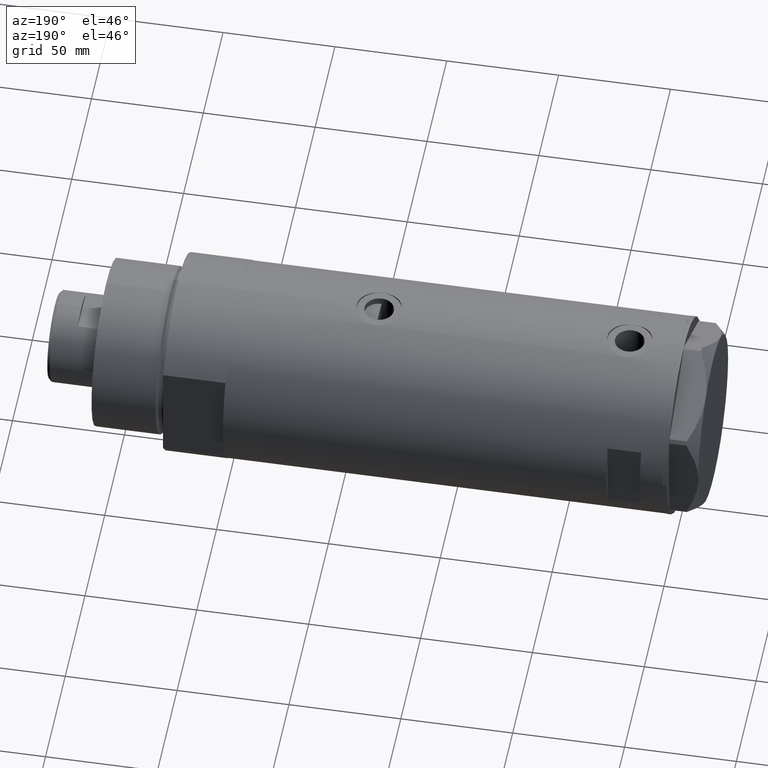
[diagram: clean part render]
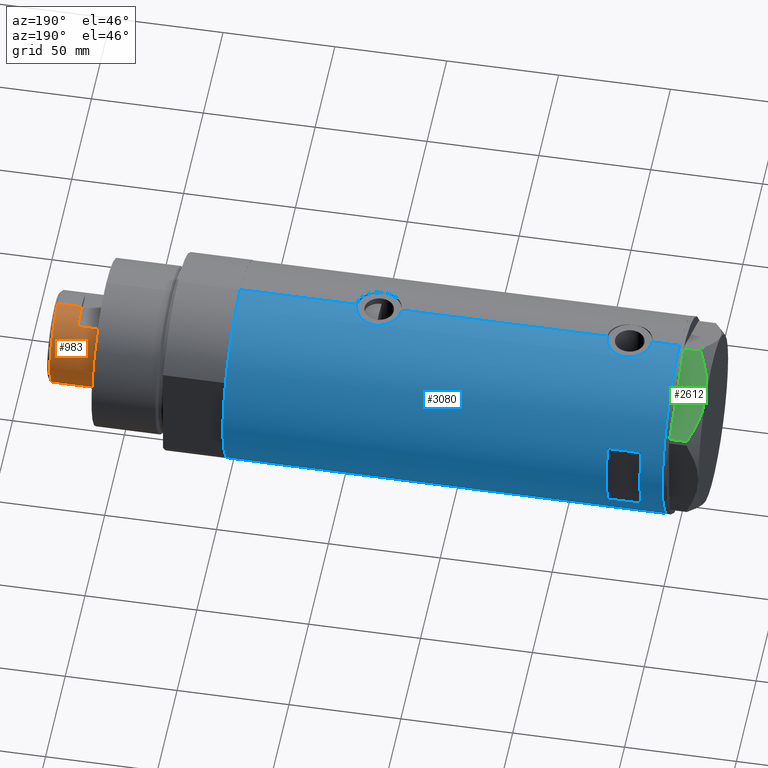
[diagram: same view with three faces highlighted in distinct colors, each labeled with its STEP entity id]
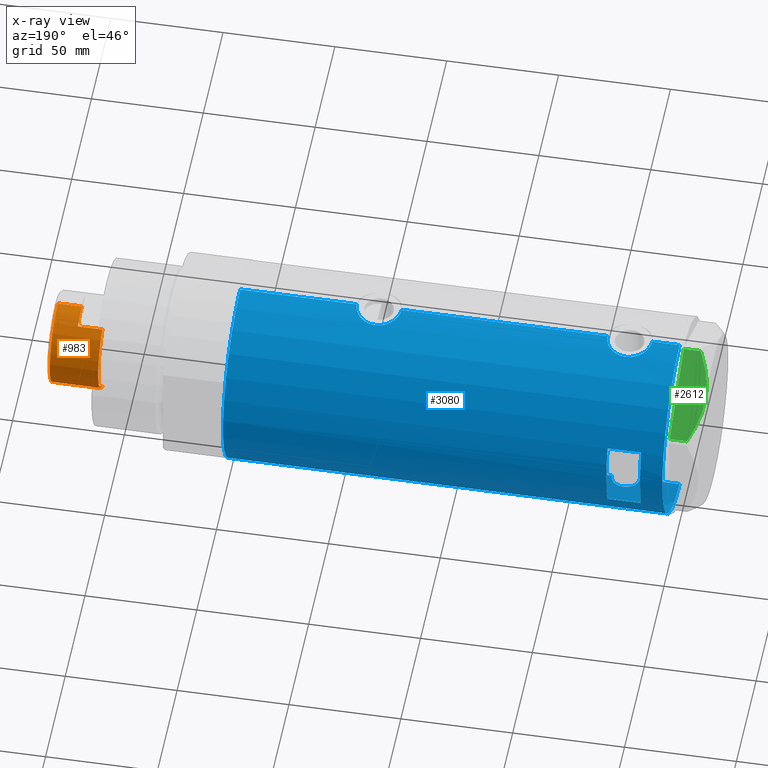
[diagram: x-ray of the same camera — body ghosted, the three highlighted faces saturated]
A machine part, auxiliary view with three faces highlighted in distinct colors.
The next image is the same camera in x-ray (body ghosted, the three faces saturated) — at least one of them is partly hidden behind the body in this view.
Their STEP definitions:

[orange] entity #983 — the highlighted cylindrical surface (partial cylindrical patch) has radius 20.5 mm, axis along (-1, -0, 0).
#8 = LINE ( 'NONE', #2522, #1669 ) ;
#36 = CIRCLE ( 'NONE', #555, 20.50000000000000355 ) ;
#46 = LINE ( 'NONE', #2860, #1071 ) ;
#96 = ORIENTED_EDGE ( 'NONE', *, *, #2077, .T. ) ;
#132 = ORIENTED_EDGE ( 'NONE', *, *, #4010, .F. ) ;
#145 = VERTEX_POINT ( 'NONE', #3729 ) ;
#335 = DIRECTION ( 'NONE',  ( -1.000000000000000000, 0.000000000000000000, 0.000000000000000000 ) ) ;
#540 = CARTESIAN_POINT ( 'NONE',  ( 17.97852886083842705, 9.849999999999997868, 230.3000000000000114 ) ) ;
#555 = AXIS2_PLACEMENT_3D ( 'NONE', #1433, #2538, #2127 ) ;
#626 = VERTEX_POINT ( 'NONE', #3597 ) ;
#908 = EDGE_CURVE ( 'NONE', #145, #3877, #2948, .T. ) ;
#983 = ADVANCED_FACE ( 'NONE', ( #1128 ), #4513, .T. ) ;
#1041 = DIRECTION ( 'NONE',  ( 0.000000000000000000, 0.000000000000000000, 1.000000000000000000 ) ) ;
#1071 = VECTOR ( 'NONE', #3649, 1000.000000000000000 ) ;
#1081 = CARTESIAN_POINT ( 'NONE',  ( 0.000000000000000000, 0.000000000000000000, 230.3000000000000114 ) ) ;
#1128 = FACE_OUTER_BOUND ( 'NONE', #1849, .T. ) ;
#1211 = AXIS2_PLACEMENT_3D ( 'NONE', #1081, #1502, #1797 ) ;
#1223 = AXIS2_PLACEMENT_3D ( 'NONE', #3716, #1982, #4475 ) ;
#1296 = CARTESIAN_POINT ( 'NONE',  ( -20.50000000000000355, 0.000000000000000000, 251.9000000000001194 ) ) ;
#1325 = EDGE_CURVE ( 'NONE', #4106, #3703, #3181, .T. ) ;
#1433 = CARTESIAN_POINT ( 'NONE',  ( 0.000000000000000000, 0.000000000000000000, 251.9000000000001194 ) ) ;
#1496 = CARTESIAN_POINT ( 'NONE',  ( 20.50000000000000000, 2.510525938252074481E-15, 241.3000000000000114 ) ) ;
#1502 = DIRECTION ( 'NONE',  ( 0.000000000000000000, 0.000000000000000000, 1.000000000000000000 ) ) ;
#1669 = VECTOR ( 'NONE', #2163, 1000.000000000000000 ) ;
#1797 = DIRECTION ( 'NONE',  ( 1.000000000000000000, 0.000000000000000000, 0.000000000000000000 ) ) ;
#1813 = DIRECTION ( 'NONE',  ( -0.000000000000000000, -0.000000000000000000, -1.000000000000000000 ) ) ;
#1822 = VECTOR ( 'NONE', #1813, 1000.000000000000000 ) ;
#1840 = ORIENTED_EDGE ( 'NONE', *, *, #2303, .T. ) ;
#1849 = EDGE_LOOP ( 'NONE', ( #2883, #2658, #1840, #3796, #2614, #132, #96, #3162 ) ) ;
#1854 = EDGE_CURVE ( 'NONE', #3073, #145, #36, .T. ) ;
#1982 = DIRECTION ( 'NONE',  ( 0.000000000000000000, 0.000000000000000000, 1.000000000000000000 ) ) ;
#2077 = EDGE_CURVE ( 'NONE', #3319, #3763, #2684, .T. ) ;
#2127 = DIRECTION ( 'NONE',  ( 1.000000000000000000, 0.000000000000000000, 0.000000000000000000 ) ) ;
#2163 = DIRECTION ( 'NONE',  ( -0.000000000000000000, -0.000000000000000000, -1.000000000000000000 ) ) ;
#2303 = EDGE_CURVE ( 'NONE', #3877, #626, #2455, .T. ) ;
#2344 = CARTESIAN_POINT ( 'NONE',  ( -17.97852886083842705, 9.849999999999965894, 230.3000000000000114 ) ) ;
#2455 = CIRCLE ( 'NONE', #1223, 20.50000000000000000 ) ;
#2522 = CARTESIAN_POINT ( 'NONE',  ( 17.97852886083842705, 9.849999999999997868, 241.3000000000000114 ) ) ;
#2525 = EDGE_CURVE ( 'NONE', #3073, #3763, #46, .T. ) ;
#2538 = DIRECTION ( 'NONE',  ( 0.000000000000000000, 0.000000000000000000, -1.000000000000000000 ) ) ;
#2600 = CARTESIAN_POINT ( 'NONE',  ( 20.50000000000000355, 2.510525938252074481E-15, 241.3000000000000114 ) ) ;
#2614 = ORIENTED_EDGE ( 'NONE', *, *, #1325, .T. ) ;
#2658 = ORIENTED_EDGE ( 'NONE', *, *, #908, .T. ) ;
#2684 = CIRCLE ( 'NONE', #4149, 20.50000000000000000 ) ;
#2798 = LINE ( 'NONE', #3174, #1822 ) ;
#2860 = CARTESIAN_POINT ( 'NONE',  ( -20.50000000000000355, 0.000000000000000000, 241.3000000000000114 ) ) ;
#2883 = ORIENTED_EDGE ( 'NONE', *, *, #1854, .T. ) ;
#2948 = LINE ( 'NONE', #2600, #3266 ) ;
#3073 = VERTEX_POINT ( 'NONE', #1296 ) ;
#3162 = ORIENTED_EDGE ( 'NONE', *, *, #2525, .F. ) ;
#3172 = CARTESIAN_POINT ( 'NONE',  ( -17.97852886083842705, 9.849999999999997868, 241.3000000000000114 ) ) ;
#3174 = CARTESIAN_POINT ( 'NONE',  ( -17.97852886083842705, 9.849999999999997868, 241.3000000000000114 ) ) ;
#3179 = CARTESIAN_POINT ( 'NONE',  ( 0.000000000000000000, 0.000000000000000000, 241.3000000000000114 ) ) ;
#3181 = CIRCLE ( 'NONE', #1211, 20.49999999999998934 ) ;
#3208 = CARTESIAN_POINT ( 'NONE',  ( -20.50000000000000000, 0.000000000000000000, 241.3000000000000114 ) ) ;
#3266 = VECTOR ( 'NONE', #3651, 1000.000000000000000 ) ;
#3319 = VERTEX_POINT ( 'NONE', #3172 ) ;
#3400 = AXIS2_PLACEMENT_3D ( 'NONE', #3179, #3500, #335 ) ;
#3450 = DIRECTION ( 'NONE',  ( 1.000000000000000000, 0.000000000000000000, 0.000000000000000000 ) ) ;
#3500 = DIRECTION ( 'NONE',  ( -0.000000000000000000, -0.000000000000000000, -1.000000000000000000 ) ) ;
#3597 = CARTESIAN_POINT ( 'NONE',  ( 17.97852886083842705, 9.849999999999997868, 241.3000000000000114 ) ) ;
#3649 = DIRECTION ( 'NONE',  ( -0.000000000000000000, -0.000000000000000000, -1.000000000000000000 ) ) ;
#3651 = DIRECTION ( 'NONE',  ( -0.000000000000000000, -0.000000000000000000, -1.000000000000000000 ) ) ;
#3703 = VERTEX_POINT ( 'NONE', #2344 ) ;
#3716 = CARTESIAN_POINT ( 'NONE',  ( 0.000000000000000000, 0.000000000000000000, 241.3000000000000114 ) ) ;
#3729 = CARTESIAN_POINT ( 'NONE',  ( 20.50000000000000355, 2.510525938252074481E-15, 251.9000000000001194 ) ) ;
#3763 = VERTEX_POINT ( 'NONE', #3208 ) ;
#3771 = EDGE_CURVE ( 'NONE', #626, #4106, #8, .T. ) ;
#3796 = ORIENTED_EDGE ( 'NONE', *, *, #3771, .T. ) ;
#3840 = CARTESIAN_POINT ( 'NONE',  ( 0.000000000000000000, 0.000000000000000000, 241.3000000000000114 ) ) ;
#3877 = VERTEX_POINT ( 'NONE', #1496 ) ;
#4010 = EDGE_CURVE ( 'NONE', #3319, #3703, #2798, .T. ) ;
#4106 = VERTEX_POINT ( 'NONE', #540 ) ;
#4149 = AXIS2_PLACEMENT_3D ( 'NONE', #3840, #1041, #3450 ) ;
#4475 = DIRECTION ( 'NONE',  ( 1.000000000000000000, 0.000000000000000000, 0.000000000000000000 ) ) ;
#4513 = CYLINDRICAL_SURFACE ( 'NONE', #3400, 20.50000000000000355 ) ;

[blue] entity #3080 — the highlighted cylindrical surface (partial cylindrical patch) has radius 44 mm, axis along (-1, -0, 0).
#7 = CARTESIAN_POINT ( 'NONE',  ( 42.96879251999280314, 9.470609476412120031, -39.32722899941056482 ) ) ;
#59 = DIRECTION ( 'NONE',  ( 0.000000000000000000, 0.000000000000000000, 1.000000000000000000 ) ) ;
#79 = CARTESIAN_POINT ( 'NONE',  ( -43.62981559643959883, 5.696090409300652802, 71.61948634585476725 ) ) ;
#85 = CARTESIAN_POINT ( 'NONE',  ( -44.00000000000000000, 5.388445916248353619E-15, -98.20000000000000284 ) ) ;
#104 = ORIENTED_EDGE ( 'NONE', *, *, #281, .F. ) ;
#122 = AXIS2_PLACEMENT_3D ( 'NONE', #2350, #556, #3396 ) ;
#139 = DIRECTION ( 'NONE',  ( 0.000000000000000000, 1.000000000000000000, -4.731064025391292434E-15 ) ) ;
#152 = VERTEX_POINT ( 'NONE', #530 ) ;
#159 = CARTESIAN_POINT ( 'NONE',  ( 44.00000000000000711, 0.3269372501759374994, 85.90000000000001990 ) ) ;
#172 = ORIENTED_EDGE ( 'NONE', *, *, #2776, .F. ) ;
#180 = CARTESIAN_POINT ( 'NONE',  ( 42.90786968859021044, 9.742642423712171151, 73.62197703452876851 ) ) ;
#203 = CARTESIAN_POINT ( 'NONE',  ( 43.57657781376909156, 6.094873943596678778, 67.96525698880405741 ) ) ;
#215 = CARTESIAN_POINT ( 'NONE',  ( 43.99635668041006653, 0.6544833911834557760, -26.11599291522469457 ) ) ;
#222 = B_SPLINE_CURVE_WITH_KNOTS ( 'NONE', 3,
 ( #2989, #923, #946, #3713, #2321, #2627, #2650, #1615, #3307, #2689, #203, #4084, #1932, #3326, #4344, #4365, #3688, #2597, #902, #4424, #1995, #3730, #180, #1951, #1245, #2966, #1589, #1198, #4057, #2945, #231, #4408, #4042, #2296, #1284, #4390, #3669, #1543, #549, #3349, #2342, #574, #1262, #3006, #591, #1976, #2259, #2666, #159, #3992 ),
 .UNSPECIFIED., .F., .F.,
 ( 4, 2, 2, 2, 2, 2, 2, 2, 2, 2, 2, 2, 2, 2, 2, 2, 2, 2, 2, 2, 2, 2, 2, 2, 4 ),
 ( 2.479523669370822448E-18, 0.001960456513248879339, 0.002940684769873313370, 0.003920913026497747401, 0.005881369539746631077, 0.006861597796371071180, 0.007841826052995510415, 0.009802282566244392356, 0.01078251082286883072, 0.01176273907949326909, 0.01274296733611770746, 0.01372319559274214583, 0.01568365210599106593, 0.01764410861923998430, 0.01960456513248890267, 0.02058479338911334278, 0.02156502164573777941, 0.02254524990236221951, 0.02352547815898665615, 0.02548593467223552941, 0.02646616292885996952, 0.02744639118548440615, 0.02940684769873327942, 0.03038707595535771258, 0.03136730421198213881 ),
 .UNSPECIFIED. ) ;
#231 = CARTESIAN_POINT ( 'NONE',  ( 43.07641822757289418, 8.969229373860565957, 80.33396235790173989 ) ) ;
#247 = CARTESIAN_POINT ( 'NONE',  ( 43.71659050864931828, 5.015880325000608764, -44.77566825963823050 ) ) ;
#270 = B_SPLINE_CURVE_WITH_KNOTS ( 'NONE', 3,
 ( #550, #1952, #4425, #2343, #3670, #1616, #3731, #592, #247, #4450, #1312, #2018, #4109, #3411, #968, #4129, #4470, #273, #1675, #1330, #7, #2500, #1923, #1127, #2266, #4003, #2162, #524, #1553, #2884, #1250, #4355, #538, #1961, #1574, #788, #3895, #1816, #759, #2521, #3316, #2956, #892, #2975, #3659, #3921, #869, #215, #3635, #3546 ),
 .UNSPECIFIED., .F., .F.,
 ( 4, 2, 2, 2, 2, 2, 2, 2, 2, 2, 2, 2, 2, 2, 2, 2, 2, 2, 2, 2, 2, 2, 2, 2, 4 ),
 ( 2.755634020688765633E-18, 0.001960456513248879772, 0.002940684769873318574, 0.003920913026497756942, 0.005881369539746635414, 0.006861597796371073782, 0.007841826052995512150, 0.009802282566244404499, 0.01078251082286885675, 0.01176273907949330899, 0.01274296733611776297, 0.01372319559274221522, 0.01568365210599110063, 0.01764410861923998777, 0.01960456513248886798, 0.02058479338911332196, 0.02156502164573776553, 0.02254524990236220564, 0.02352547815898664574, 0.02548593467223553288, 0.02646616292885997299, 0.02744639118548441656, 0.02940684769873329329, 0.03038707595535772993, 0.03136730421198216656 ),
 .UNSPECIFIED. ) ;
#273 = CARTESIAN_POINT ( 'NONE',  ( 43.07598348983508174, 8.971306953823013686, -40.52969423187187914 ) ) ;
#281 = EDGE_CURVE ( 'NONE', #3415, #3314, #2468, .T. ) ;
#292 = CARTESIAN_POINT ( 'NONE',  ( -43.83593455218809254, 3.811409182021277431, 79.17014927703502281 ) ) ;
#295 = CARTESIAN_POINT ( 'NONE',  ( -43.67863969133946256, 5.309394106110041811, -58.59620703497452610 ) ) ;
#313 = CARTESIAN_POINT ( 'NONE',  ( -43.66555354895123031, 5.415612800338319488, -58.77343642822444281 ) ) ;
#332 = CARTESIAN_POINT ( 'NONE',  ( -44.00000000000000000, 5.388445781992449847E-15, -68.15000000000001990 ) ) ;
#353 = CARTESIAN_POINT ( 'NONE',  ( -43.88883895882799635, 3.130924084324101297, 68.78687544251856423 ) ) ;
#356 = CARTESIAN_POINT ( 'NONE',  ( -43.99417607942194763, 0.8200150578638748522, 80.40936672516741623 ) ) ;
#373 = ORIENTED_EDGE ( 'NONE', *, *, #3442, .T. ) ;
#378 = CARTESIAN_POINT ( 'NONE',  ( -43.67863969133946966, 5.309394106110037370, 77.50379296502549664 ) ) ;
#379 = CARTESIAN_POINT ( 'NONE',  ( -43.95446647384543581, 2.010857111636599637, 80.12124226363938817 ) ) ;
#413 = AXIS2_PLACEMENT_3D ( 'NONE', #415, #2906, #139 ) ;
#415 = CARTESIAN_POINT ( 'NONE',  ( 0.000000000000000000, 0.000000000000000000, 73.20000000000018758 ) ) ;
#428 = CARTESIAN_POINT ( 'NONE',  ( -43.59995593514495482, 5.920088975424566691, 76.21417908691780951 ) ) ;
#459 = ORIENTED_EDGE ( 'NONE', *, *, #4329, .F. ) ;
#474 = LINE ( 'NONE', #2938, #995 ) ;
#482 = VERTEX_POINT ( 'NONE', #3802 ) ;
#498 = VECTOR ( 'NONE', #1064, 1000.000000000000000 ) ;
#524 = CARTESIAN_POINT ( 'NONE',  ( 42.92259096922158790, 9.678247830257131312, -33.49994006971207483 ) ) ;
#530 = CARTESIAN_POINT ( 'NONE',  ( 44.00000000000000000, 2.836945177865671897E-15, -46.10000000000000853 ) ) ;
#538 = CARTESIAN_POINT ( 'NONE',  ( 43.17306590853065273, 8.492365194390522731, -30.80987467306545113 ) ) ;
#549 = CARTESIAN_POINT ( 'NONE',  ( 43.57805684119164624, 6.103282219787165452, 83.84816201647861078 ) ) ;
#550 = CARTESIAN_POINT ( 'NONE',  ( 44.00000000000000000, 2.836945177865671897E-15, -46.10000000000000853 ) ) ;
#556 = DIRECTION ( 'NONE',  ( 0.000000000000000000, 0.000000000000000000, 1.000000000000000000 ) ) ;
#574 = CARTESIAN_POINT ( 'NONE',  ( 43.77712723341632994, 4.432620652875498557, 84.86995009759974096 ) ) ;
#591 = CARTESIAN_POINT ( 'NONE',  ( 43.92756755766649235, 2.604528169608113064, 85.57713411902345513 ) ) ;
#592 = CARTESIAN_POINT ( 'NONE',  ( 43.77939001959705223, 4.442287752090387620, -45.08306177559163075 ) ) ;
#598 = CARTESIAN_POINT ( 'NONE',  ( 44.00000000000000000, 0.000000000000000000, -98.20000000000000284 ) ) ;
#612 = CARTESIAN_POINT ( 'NONE',  ( -43.55386785759470314, 6.249847571481745412, -61.48945052382045873 ) ) ;
#644 = B_SPLINE_CURVE_WITH_KNOTS ( 'NONE', 3,
 ( #1411, #705, #356, #3083, #2467, #379, #2494, #2037, #3432, #292, #1693, #3860, #2131, #378, #3834, #1490, #1810, #428, #3171, #2541, #1834, #1388, #702, #4262, #3539, #1438, #79, #3467, #1092, #2491, #3887, #4531, #3936, #3911, #2795, #353, #2816, #750, #4189, #1409, #2104, #778, #3196 ),
 .UNSPECIFIED., .F., .F.,
 ( 4, 2, 2, 2, 2, 2, 2, 2, 1, 2, 2, 2, 2, 2, 2, 2, 2, 2, 2, 2, 2, 4 ),
 ( 4.607873388256435088E-19, 0.001222818171749670340, 0.001834227257624505619, 0.002445636343499341114, 0.003668454515249027284, 0.004891272686998713454, 0.006114090858748398756, 0.006725499944623259188, 0.007336909030498119620, 0.007948318116372978318, 0.008559727202247837882, 0.009782545373997518848, 0.01100536354574719981, 0.01222818171749687904, 0.01283959080337173861, 0.01345099988924659644, 0.01467381806099631383, 0.01589663623274603296, 0.01650804531862088906, 0.01711945440449574862, 0.01834227257624546428, 0.01956509074799517994 ),
 .UNSPECIFIED. ) ;
#659 = CARTESIAN_POINT ( 'NONE',  ( -43.59867737633045692, 5.931302618788640402, -63.91249495029889260 ) ) ;
#702 = CARTESIAN_POINT ( 'NONE',  ( -43.55382423478827292, 6.250151562062086441, 73.79410470512661391 ) ) ;
#705 = CARTESIAN_POINT ( 'NONE',  ( -44.00000000000000711, 0.4135148353567996149, 80.45000000000001705 ) ) ;
#708 = EDGE_CURVE ( 'NONE', #2781, #1048, #1271, .T. ) ;
#711 = CARTESIAN_POINT ( 'NONE',  ( -43.66575107734169592, 5.414026674167585540, -65.02935088037702371 ) ) ;
#732 = ORIENTED_EDGE ( 'NONE', *, *, #3563, .F. ) ;
#750 = CARTESIAN_POINT ( 'NONE',  ( -43.92459115390705193, 2.581892149020998950, 68.50454172926654905 ) ) ;
#759 = CARTESIAN_POINT ( 'NONE',  ( 43.57805684119164624, 6.103282219787168117, -28.15183798352141054 ) ) ;
#761 = ORIENTED_EDGE ( 'NONE', *, *, #3439, .F. ) ;
#778 = CARTESIAN_POINT ( 'NONE',  ( -43.99999999999997158, 0.4081702738789203533, 67.94999999999997442 ) ) ;
#788 = CARTESIAN_POINT ( 'NONE',  ( 43.35257020184194232, 7.523219862841651562, -29.50397445915864481 ) ) ;
#790 = VECTOR ( 'NONE', #1030, 1000.000000000000000 ) ;
#811 = VERTEX_POINT ( 'NONE', #3636 ) ;
#820 = DIRECTION ( 'NONE',  ( 0.000000000000000000, 0.000000000000000000, 1.000000000000000000 ) ) ;
#825 = ORIENTED_EDGE ( 'NONE', *, *, #3464, .T. ) ;
#851 = CIRCLE ( 'NONE', #1055, 44.00000000000000000 ) ;
#869 = CARTESIAN_POINT ( 'NONE',  ( 43.98169492814103876, 1.310824514239766536, -26.18080219619315585 ) ) ;
#892 = CARTESIAN_POINT ( 'NONE',  ( 43.80640706382535399, 4.134078575915393294, -26.98867178437913239 ) ) ;
#898 = CARTESIAN_POINT ( 'NONE',  ( 44.00000000000000000, 0.000000000000000000, -98.20000000000000284 ) ) ;
#902 = CARTESIAN_POINT ( 'NONE',  ( 43.04663170950395568, 9.110642017076083121, 71.76452497809607678 ) ) ;
#921 = VECTOR ( 'NONE', #4052, 1000.000000000000000 ) ;
#923 = CARTESIAN_POINT ( 'NONE',  ( 44.00000000000002132, 0.6630566900259825536, 65.90000000000003411 ) ) ;
#946 = CARTESIAN_POINT ( 'NONE',  ( 43.98503110884232115, 1.314607393679875669, 65.96529015654452621 ) ) ;
#959 = EDGE_CURVE ( 'NONE', #1129, #4006, #851, .T. ) ;
#968 = CARTESIAN_POINT ( 'NONE',  ( 43.27822890220284080, 7.945655169171516263, -42.20725383289290278 ) ) ;
#970 = EDGE_LOOP ( 'NONE', ( #1789, #825, #104, #373, #761, #3661, #3234, #2166, #2158, #459, #172, #2021 ) ) ;
#995 = VECTOR ( 'NONE', #4334, 1000.000000000000000 ) ;
#1004 = CARTESIAN_POINT ( 'NONE',  ( -43.99417607942193342, 0.8200150578638759624, -55.69063327483257808 ) ) ;
#1025 = CARTESIAN_POINT ( 'NONE',  ( -43.61859254253774054, 5.782454868881357513, -59.50213599105533291 ) ) ;
#1030 = DIRECTION ( 'NONE',  ( 0.000000000000000000, 0.000000000000000000, 1.000000000000000000 ) ) ;
#1044 = CARTESIAN_POINT ( 'NONE',  ( -44.00000000000000000, 6.472851849715296073E-16, -55.65000000000000568 ) ) ;
#1048 = VERTEX_POINT ( 'NONE', #3642 ) ;
#1055 = AXIS2_PLACEMENT_3D ( 'NONE', #3689, #2557, #3953 ) ;
#1064 = DIRECTION ( 'NONE',  ( 0.000000000000000000, 0.000000000000000000, 1.000000000000000000 ) ) ;
#1092 = CARTESIAN_POINT ( 'NONE',  ( -43.66575107734168171, 5.414026674167576658, 71.07064911962299902 ) ) ;
#1102 = EDGE_CURVE ( 'NONE', #2727, #1407, #2421, .T. ) ;
#1110 = CARTESIAN_POINT ( 'NONE',  ( -15.96871942267132027, 40.99999999999999289, -98.20000000000000284 ) ) ;
#1127 = CARTESIAN_POINT ( 'NONE',  ( 42.86370458161098185, 9.935807968041572735, -37.40904550429866049 ) ) ;
#1129 = VERTEX_POINT ( 'NONE', #898 ) ;
#1198 = CARTESIAN_POINT ( 'NONE',  ( 42.92259096922160211, 9.678247830257127760, 78.50005993028796070 ) ) ;
#1245 = CARTESIAN_POINT ( 'NONE',  ( 42.84863276153905787, 9.999733523508361088, 75.24130095249223871 ) ) ;
#1250 = CARTESIAN_POINT ( 'NONE',  ( 43.07641822757289418, 8.969229373860574839, -31.66603764209828498 ) ) ;
#1262 = CARTESIAN_POINT ( 'NONE',  ( 43.80640706382536109, 4.134078575915387965, 85.01132821562090669 ) ) ;
#1271 = LINE ( 'NONE', #2331, #1801 ) ;
#1274 = LINE ( 'NONE', #4142, #2403 ) ;
#1284 = CARTESIAN_POINT ( 'NONE',  ( 43.27871541412905287, 7.937063204555986573, 81.99174997246032603 ) ) ;
#1312 = CARTESIAN_POINT ( 'NONE',  ( 43.57657781376907025, 6.094873943596692101, -44.03474301119596390 ) ) ;
#1328 = CARTESIAN_POINT ( 'NONE',  ( -43.87596296923811678, 3.305851531861740522, -67.20803585876262787 ) ) ;
#1330 = CARTESIAN_POINT ( 'NONE',  ( 42.99303682946562333, 9.360292926890512177, -39.63424220207205195 ) ) ;
#1344 = CARTESIAN_POINT ( 'NONE',  ( -44.00000000000000000, 5.388445781992449847E-15, -68.15000000000001990 ) ) ;
#1347 = CARTESIAN_POINT ( 'NONE',  ( -43.71938389712227035, 4.966728892888067293, -58.08385547659131021 ) ) ;
#1373 = CARTESIAN_POINT ( 'NONE',  ( -43.92459115390705193, 2.581892149021001615, -67.59545827073348789 ) ) ;
#1388 = CARTESIAN_POINT ( 'NONE',  ( -43.55386785759471024, 6.249847571481740971, 74.61054947617955690 ) ) ;
#1395 = CARTESIAN_POINT ( 'NONE',  ( -43.91413175532568403, 2.773555030353458850, -56.28415761633254277 ) ) ;
#1407 = VERTEX_POINT ( 'NONE', #4321 ) ;
#1409 = CARTESIAN_POINT ( 'NONE',  ( -43.97181775256600389, 1.624866278047415680, 68.15107081614905837 ) ) ;
#1411 = CARTESIAN_POINT ( 'NONE',  ( -44.00000000000000000, 4.742435893011557518E-16, 80.45000000000001705 ) ) ;
#1415 = CARTESIAN_POINT ( 'NONE',  ( -43.59995593514495482, 5.920088975424572908, -59.88582091308221322 ) ) ;
#1432 = EDGE_CURVE ( 'NONE', #2672, #2727, #222, .T. ) ;
#1438 = CARTESIAN_POINT ( 'NONE',  ( -43.59867737633045692, 5.931302618788633296, 72.18750504970115855 ) ) ;
#1471 = LINE ( 'NONE', #2873, #498 ) ;
#1490 = CARTESIAN_POINT ( 'NONE',  ( -43.64122538274737195, 5.608286354294323317, 76.96611386963340351 ) ) ;
#1515 = VECTOR ( 'NONE', #3754, 1000.000000000000000 ) ;
#1543 = CARTESIAN_POINT ( 'NONE',  ( 43.50382207688846847, 6.605942769308303930, 83.43604688838220795 ) ) ;
#1544 = CARTESIAN_POINT ( 'NONE',  ( 44.00000000000000000, -2.552687571866728611E-15, 65.90000000000001990 ) ) ;
#1553 = CARTESIAN_POINT ( 'NONE',  ( 42.96547725528407113, 9.488625330801086832, -32.87549652788927546 ) ) ;
#1565 = CARTESIAN_POINT ( 'NONE',  ( 0.000000000000000000, 0.000000000000000000, 98.20000000000000284 ) ) ;
#1574 = CARTESIAN_POINT ( 'NONE',  ( 43.27871541412904577, 7.937063204555981244, -30.00825002753968107 ) ) ;
#1589 = CARTESIAN_POINT ( 'NONE',  ( 42.86396777580258544, 9.934664719553397916, 77.21576199026523568 ) ) ;
#1615 = CARTESIAN_POINT ( 'NONE',  ( 43.77939001959705223, 4.442287752090382291, 66.91693822440836925 ) ) ;
#1616 = CARTESIAN_POINT ( 'NONE',  ( 43.88297407487991109, 3.222431612395382228, -45.57228202029342157 ) ) ;
#1675 = CARTESIAN_POINT ( 'NONE',  ( 43.04663170950394857, 9.110642017076081345, -40.23547502190394454 ) ) ;
#1693 = CARTESIAN_POINT ( 'NONE',  ( -43.80646232387288563, 4.132500855894024383, 78.90645585403358098 ) ) ;
#1696 = CARTESIAN_POINT ( 'NONE',  ( -43.55382423478827292, 6.250151562062090882, -62.30589529487338041 ) ) ;
#1715 = CARTESIAN_POINT ( 'NONE',  ( -43.64133398152736021, 5.607447751852158824, -64.66786045012435125 ) ) ;
#1730 = AXIS2_PLACEMENT_3D ( 'NONE', #1565, #820, #2221 ) ;
#1787 = CARTESIAN_POINT ( 'NONE',  ( -44.00000000000000000, 6.472851849715296073E-16, -55.65000000000000568 ) ) ;
#1789 = ORIENTED_EDGE ( 'NONE', *, *, #959, .T. ) ;
#1801 = VECTOR ( 'NONE', #4415, 1000.000000000000000 ) ;
#1810 = CARTESIAN_POINT ( 'NONE',  ( -43.61859254253774054, 5.782454868881351295, 76.59786400894466851 ) ) ;
#1816 = CARTESIAN_POINT ( 'NONE',  ( 43.50382207688846847, 6.605942769308304818, -28.56395311161779915 ) ) ;
#1834 = CARTESIAN_POINT ( 'NONE',  ( -43.55963022497231663, 6.210088036293396563, 75.01646163017424840 ) ) ;
#1879 = ORIENTED_EDGE ( 'NONE', *, *, #2590, .F. ) ;
#1923 = CARTESIAN_POINT ( 'NONE',  ( 42.90786968859021044, 9.742642423712174704, -38.37802296547129544 ) ) ;
#1932 = CARTESIAN_POINT ( 'NONE',  ( 43.46520118248735542, 6.843279251446916511, 68.60101672787835980 ) ) ;
#1951 = CARTESIAN_POINT ( 'NONE',  ( 42.86370458161099606, 9.935807968041567406, 74.59095449570133951 ) ) ;
#1952 = CARTESIAN_POINT ( 'NONE',  ( 44.00000000000002132, 0.6630566900259828866, -46.10000000000002984 ) ) ;
#1961 = CARTESIAN_POINT ( 'NONE',  ( 43.24261242176996234, 8.130827601038834729, -30.26944813145831148 ) ) ;
#1976 = CARTESIAN_POINT ( 'NONE',  ( 43.97062489912108418, 1.639461988184795604, 85.77014626665985020 ) ) ;
#1983 = FACE_BOUND ( 'NONE', #2980, .T. ) ;
#1989 = EDGE_CURVE ( 'NONE', #3797, #2856, #474, .T. ) ;
#1995 = CARTESIAN_POINT ( 'NONE',  ( 42.96879251999280314, 9.470609476412112926, 72.67277100058944939 ) ) ;
#2017 = CARTESIAN_POINT ( 'NONE',  ( -43.97754480947186551, 1.419697478855586059, -55.80996723947924210 ) ) ;
#2018 = CARTESIAN_POINT ( 'NONE',  ( 43.50265731352001097, 6.601850423195605444, -43.61819167298953914 ) ) ;
#2021 = ORIENTED_EDGE ( 'NONE', *, *, #2258, .F. ) ;
#2037 = CARTESIAN_POINT ( 'NONE',  ( -43.91413175532567692, 2.773555030353453965, 79.81584238366747286 ) ) ;
#2051 = FACE_OUTER_BOUND ( 'NONE', #970, .T. ) ;
#2083 = CARTESIAN_POINT ( 'NONE',  ( -43.67867890111968876, 5.309046579850795311, -65.20422779076025677 ) ) ;
#2104 = CARTESIAN_POINT ( 'NONE',  ( -43.99413512814552263, 0.8228129877960659311, 67.99091685674179075 ) ) ;
#2113 = CARTESIAN_POINT ( 'NONE',  ( -43.55963022497232373, 6.210088036293401004, -61.08353836982577434 ) ) ;
#2131 = CARTESIAN_POINT ( 'NONE',  ( -43.71938389712227746, 4.966728892888062852, 78.01614452340872674 ) ) ;
#2158 = ORIENTED_EDGE ( 'NONE', *, *, #1432, .F. ) ;
#2162 = CARTESIAN_POINT ( 'NONE',  ( 42.86396777580258544, 9.934664719553399692, -34.78423800973479274 ) ) ;
#2166 = ORIENTED_EDGE ( 'NONE', *, *, #1102, .F. ) ;
#2221 = DIRECTION ( 'NONE',  ( 1.000000000000000000, 0.000000000000000000, 0.000000000000000000 ) ) ;
#2258 = EDGE_CURVE ( 'NONE', #1129, #152, #3420, .T. ) ;
#2259 = CARTESIAN_POINT ( 'NONE',  ( 43.98169492814103165, 1.310824514239766536, 85.81919780380685836 ) ) ;
#2266 = CARTESIAN_POINT ( 'NONE',  ( 42.84863276153905787, 9.999733523508369970, -36.75869904750778261 ) ) ;
#2296 = CARTESIAN_POINT ( 'NONE',  ( 43.24261242176996234, 8.130827601038829400, 81.73055186854172405 ) ) ;
#2321 = CARTESIAN_POINT ( 'NONE',  ( 43.92466059386729427, 2.593004216484783964, 66.23643330328646073 ) ) ;
#2331 = CARTESIAN_POINT ( 'NONE',  ( 15.96871942267132027, 40.99999999999999289, -98.20000000000000284 ) ) ;
#2334 = EDGE_CURVE ( 'NONE', #2602, #482, #3553, .T. ) ;
#2342 = CARTESIAN_POINT ( 'NONE',  ( 43.71454618729810448, 5.012329428678959253, 84.55936974058313638 ) ) ;
#2343 = CARTESIAN_POINT ( 'NONE',  ( 43.94229162222111285, 2.275476993733913655, -45.84314464222307350 ) ) ;
#2350 = CARTESIAN_POINT ( 'NONE',  ( 0.000000000000000000, 0.000000000000000000, -98.20000000000000284 ) ) ;
#2392 = DIRECTION ( 'NONE',  ( -0.000000000000000000, -0.000000000000000000, -1.000000000000000000 ) ) ;
#2403 = VECTOR ( 'NONE', #2679, 1000.000000000000000 ) ;
#2407 = CARTESIAN_POINT ( 'NONE',  ( -43.62981559643959883, 5.696090409300659019, -64.48051365414528391 ) ) ;
#2421 = LINE ( 'NONE', #3018, #921 ) ;
#2427 = CARTESIAN_POINT ( 'NONE',  ( -44.00000000000000711, 0.4081702738789189655, -68.15000000000003411 ) ) ;
#2444 = CARTESIAN_POINT ( 'NONE',  ( -43.74833112883975872, 4.708208586952008723, -57.76949616491121731 ) ) ;
#2467 = CARTESIAN_POINT ( 'NONE',  ( -43.97068415157983878, 1.617901284326946909, 80.24045128300046770 ) ) ;
#2468 = B_SPLINE_CURVE_WITH_KNOTS ( 'NONE', 3,
 ( #1044, #3794, #1004, #2017, #4487, #3472, #3436, #1395, #3767, #3816, #4541, #2444, #1347, #295, #313, #4194, #1025, #1415, #4152, #3086, #2113, #612, #1696, #3410, #2748, #659, #2407, #1715, #711, #2083, #3842, #4510, #2822, #3157, #1328, #3498, #3453, #1373, #2778, #3067, #4172, #2427, #332 ),
 .UNSPECIFIED., .F., .F.,
 ( 4, 2, 2, 2, 2, 2, 2, 2, 1, 2, 2, 2, 2, 2, 2, 2, 2, 2, 2, 2, 2, 4 ),
 ( 6.289190293195367850E-19, 0.001222818171749683351, 0.001834227257624524918, 0.002445636343499366702, 0.003668454515249052871, 0.004891272686998739475, 0.006114090858748426512, 0.006725499944623267862, 0.007336909030498110947, 0.007948318116372952297, 0.008559727202247794514, 0.009782545373997478949, 0.01100536354574716165, 0.01222818171749684782, 0.01283959080337170912, 0.01345099988924656868, 0.01467381806099629128, 0.01589663623274601215, 0.01650804531862087518, 0.01711945440449573475, 0.01834227257624545734, 0.01956509074799518341 ),
 .UNSPECIFIED. ) ;
#2477 = CARTESIAN_POINT ( 'NONE',  ( -44.00000000000000000, 4.742435893011557518E-16, 80.45000000000001705 ) ) ;
#2491 = CARTESIAN_POINT ( 'NONE',  ( -43.67867890111967455, 5.309046579850785541, 70.89577220923978018 ) ) ;
#2494 = CARTESIAN_POINT ( 'NONE',  ( -43.94507179847653333, 2.206027755801677870, 80.05131522281796208 ) ) ;
#2500 = CARTESIAN_POINT ( 'NONE',  ( 42.92624534982631701, 9.661626915142814909, -38.70008004144708735 ) ) ;
#2521 = CARTESIAN_POINT ( 'NONE',  ( 43.68141895191831026, 5.292250119194736868, -27.60895047714807049 ) ) ;
#2541 = CARTESIAN_POINT ( 'NONE',  ( -43.57657963456318839, 6.089610171536606664, 75.62178539580813208 ) ) ;
#2557 = DIRECTION ( 'NONE',  ( 0.000000000000000000, 0.000000000000000000, 1.000000000000000000 ) ) ;
#2584 = EDGE_CURVE ( 'NONE', #1407, #2856, #3768, .T. ) ;
#2590 = EDGE_CURVE ( 'NONE', #1048, #2602, #3849, .T. ) ;
#2597 = CARTESIAN_POINT ( 'NONE',  ( 43.07598348983507464, 8.971306953823011909, 71.47030576812815639 ) ) ;
#2602 = VERTEX_POINT ( 'NONE', #4275 ) ;
#2627 = CARTESIAN_POINT ( 'NONE',  ( 43.88297407487991109, 3.222431612395379119, 66.42771797970659975 ) ) ;
#2650 = CARTESIAN_POINT ( 'NONE',  ( 43.85884410404901246, 3.534688330930384925, 66.53980191249667087 ) ) ;
#2666 = CARTESIAN_POINT ( 'NONE',  ( 43.99635668041008074, 0.6544833911834539997, 85.88400708477533385 ) ) ;
#2672 = VERTEX_POINT ( 'NONE', #1544 ) ;
#2679 = DIRECTION ( 'NONE',  ( 0.000000000000000000, 0.000000000000000000, 1.000000000000000000 ) ) ;
#2689 = CARTESIAN_POINT ( 'NONE',  ( 43.61291203895921598, 5.829986172017926016, 67.76871289213170257 ) ) ;
#2690 = CARTESIAN_POINT ( 'NONE',  ( 44.00000000000000000, -3.917104602093038540E-21, 85.90000000000000568 ) ) ;
#2727 = VERTEX_POINT ( 'NONE', #2690 ) ;
#2737 = CYLINDRICAL_SURFACE ( 'NONE', #122, 44.00000000000000000 ) ;
#2748 = CARTESIAN_POINT ( 'NONE',  ( -43.58221825186232223, 6.049526113783029402, -63.52262970817960763 ) ) ;
#2776 = EDGE_CURVE ( 'NONE', #152, #811, #270, .T. ) ;
#2778 = CARTESIAN_POINT ( 'NONE',  ( -43.95549163632549750, 2.014511215452028825, -67.83058955704980519 ) ) ;
#2781 = VERTEX_POINT ( 'NONE', #3206 ) ;
#2795 = CARTESIAN_POINT ( 'NONE',  ( -43.87596296923810968, 3.305851531861728976, 68.89196414123739487 ) ) ;
#2816 = CARTESIAN_POINT ( 'NONE',  ( -43.91315028150560096, 2.769134003554746482, 68.59317380624599991 ) ) ;
#2822 = CARTESIAN_POINT ( 'NONE',  ( -43.80687348212602217, 4.128385987736840512, -66.61048743310966813 ) ) ;
#2856 = VERTEX_POINT ( 'NONE', #3737 ) ;
#2873 = CARTESIAN_POINT ( 'NONE',  ( -44.00000000000000000, 5.388445916248353619E-15, -98.20000000000000284 ) ) ;
#2884 = CARTESIAN_POINT ( 'NONE',  ( 43.04652664061919864, 9.111152824375430725, -31.96541990785411969 ) ) ;
#2906 = DIRECTION ( 'NONE',  ( 0.000000000000000000, 4.625929269271481378E-15, 1.000000000000000000 ) ) ;
#2938 = CARTESIAN_POINT ( 'NONE',  ( -44.00000000000000000, 5.388445916248353619E-15, -98.20000000000000284 ) ) ;
#2945 = CARTESIAN_POINT ( 'NONE',  ( 43.04652664061922707, 9.111152824375430725, 80.03458009214594426 ) ) ;
#2956 = CARTESIAN_POINT ( 'NONE',  ( 43.77712723341632284, 4.432620652875501222, -27.13004990240029457 ) ) ;
#2966 = CARTESIAN_POINT ( 'NONE',  ( 42.84850876528983576, 10.00026482975808229, 76.55058305470424784 ) ) ;
#2975 = CARTESIAN_POINT ( 'NONE',  ( 43.88561577393361546, 3.228056721358710135, -26.61278334272174817 ) ) ;
#2980 = EDGE_LOOP ( 'NONE', ( #4136, #1879, #3169, #732 ) ) ;
#2989 = CARTESIAN_POINT ( 'NONE',  ( 44.00000000000000000, -2.552687571866728611E-15, 65.90000000000001990 ) ) ;
#2991 = AXIS2_PLACEMENT_3D ( 'NONE', #3034, #2392, #3780 ) ;
#3006 = CARTESIAN_POINT ( 'NONE',  ( 43.88561577393361546, 3.228056721358708359, 85.38721665727824472 ) ) ;
#3018 = CARTESIAN_POINT ( 'NONE',  ( 44.00000000000000000, 0.000000000000000000, -98.20000000000000284 ) ) ;
#3034 = CARTESIAN_POINT ( 'NONE',  ( 0.000000000000000000, 0.000000000000000000, 88.20000000000000284 ) ) ;
#3067 = CARTESIAN_POINT ( 'NONE',  ( -43.97181775256600389, 1.624866278047417012, -67.94892918385096436 ) ) ;
#3080 = ADVANCED_FACE ( 'NONE', ( #1983, #2051 ), #2737, .T. ) ;
#3083 = CARTESIAN_POINT ( 'NONE',  ( -43.97754480947185129, 1.419697478855583617, 80.29003276052073090 ) ) ;
#3086 = CARTESIAN_POINT ( 'NONE',  ( -43.57657963456318839, 6.089610171536609329, -60.47821460419189066 ) ) ;
#3157 = CARTESIAN_POINT ( 'NONE',  ( -43.83576802966639008, 3.813209221108468938, -66.86865490354712449 ) ) ;
#3169 = ORIENTED_EDGE ( 'NONE', *, *, #708, .F. ) ;
#3171 = CARTESIAN_POINT ( 'NONE',  ( -43.58362292239462477, 6.039157555656595733, 75.82263578448043972 ) ) ;
#3196 = CARTESIAN_POINT ( 'NONE',  ( -44.00000000000000000, 5.388445781982983516E-15, 67.95000000000001705 ) ) ;
#3201 = VECTOR ( 'NONE', #59, 1000.000000000000000 ) ;
#3206 = CARTESIAN_POINT ( 'NONE',  ( 15.96871942267132027, 40.99999999999999289, 88.20000000000000284 ) ) ;
#3231 = VERTEX_POINT ( 'NONE', #4367 ) ;
#3234 = ORIENTED_EDGE ( 'NONE', *, *, #2584, .F. ) ;
#3307 = CARTESIAN_POINT ( 'NONE',  ( 43.71659050864931828, 5.015880325000608764, 67.22433174036180503 ) ) ;
#3314 = VERTEX_POINT ( 'NONE', #1344 ) ;
#3316 = CARTESIAN_POINT ( 'NONE',  ( 43.71454618729809738, 5.012329428678962806, -27.44063025941690270 ) ) ;
#3326 = CARTESIAN_POINT ( 'NONE',  ( 43.35294442506074120, 7.532526048221051873, 69.29064585508892549 ) ) ;
#3349 = CARTESIAN_POINT ( 'NONE',  ( 43.68141895191831736, 5.292250119194734204, 84.39104952285195793 ) ) ;
#3351 = CIRCLE ( 'NONE', #2991, 44.00000000000000000 ) ;
#3396 = DIRECTION ( 'NONE',  ( 1.000000000000000000, 0.000000000000000000, 0.000000000000000000 ) ) ;
#3410 = CARTESIAN_POINT ( 'NONE',  ( -43.55973179376098869, 6.209370339246239823, -62.72061767059870618 ) ) ;
#3411 = CARTESIAN_POINT ( 'NONE',  ( 43.35294442506074120, 7.532526048221052761, -42.70935414491112425 ) ) ;
#3415 = VERTEX_POINT ( 'NONE', #1787 ) ;
#3420 = LINE ( 'NONE', #598, #1515 ) ;
#3432 = CARTESIAN_POINT ( 'NONE',  ( -43.88968326835893663, 3.132363423941621150, 79.62379232356479974 ) ) ;
#3436 = CARTESIAN_POINT ( 'NONE',  ( -43.94507179847653333, 2.206027755801681867, -56.04868477718203224 ) ) ;
#3439 = EDGE_CURVE ( 'NONE', #3797, #3231, #644, .T. ) ;
#3442 = EDGE_CURVE ( 'NONE', #3415, #3231, #3489, .T. ) ;
#3453 = CARTESIAN_POINT ( 'NONE',  ( -43.91315028150559385, 2.769134003554746037, -67.50682619375406546 ) ) ;
#3464 = EDGE_CURVE ( 'NONE', #4006, #3314, #1471, .T. ) ;
#3467 = CARTESIAN_POINT ( 'NONE',  ( -43.64133398152736021, 5.607447751852152606, 71.43213954987568570 ) ) ;
#3472 = CARTESIAN_POINT ( 'NONE',  ( -43.95446647384544292, 2.010857111636600969, -55.97875773636064878 ) ) ;
#3489 = LINE ( 'NONE', #4212, #3201 ) ;
#3498 = CARTESIAN_POINT ( 'NONE',  ( -43.88883895882800346, 3.130924084324098633, -67.31312455748147272 ) ) ;
#3539 = CARTESIAN_POINT ( 'NONE',  ( -43.58221825186232223, 6.049526113783018744, 72.57737029182041510 ) ) ;
#3546 = CARTESIAN_POINT ( 'NONE',  ( 44.00000000000000000, -3.917142467416489149E-21, -26.10000000000000497 ) ) ;
#3553 = LINE ( 'NONE', #1110, #790 ) ;
#3563 = EDGE_CURVE ( 'NONE', #482, #2781, #3351, .T. ) ;
#3635 = CARTESIAN_POINT ( 'NONE',  ( 44.00000000000002132, 0.3269372501759380545, -26.10000000000001918 ) ) ;
#3636 = CARTESIAN_POINT ( 'NONE',  ( 44.00000000000000000, -3.917142467416489149E-21, -26.10000000000000497 ) ) ;
#3642 = CARTESIAN_POINT ( 'NONE',  ( 15.96871942267132027, 40.99999999999999289, 73.20000000000000284 ) ) ;
#3659 = CARTESIAN_POINT ( 'NONE',  ( 43.92756755766649235, 2.604528169608121946, -26.42286588097656974 ) ) ;
#3661 = ORIENTED_EDGE ( 'NONE', *, *, #1989, .T. ) ;
#3669 = CARTESIAN_POINT ( 'NONE',  ( 43.39051256276903246, 7.301963662770311281, 82.74024468212945749 ) ) ;
#3670 = CARTESIAN_POINT ( 'NONE',  ( 43.92466059386730137, 2.593004216484785740, -45.76356669671356059 ) ) ;
#3688 = CARTESIAN_POINT ( 'NONE',  ( 43.13897484505560698, 8.663345277311673698, 70.89470399939492040 ) ) ;
#3689 = CARTESIAN_POINT ( 'NONE',  ( 0.000000000000000000, 0.000000000000000000, -98.20000000000000284 ) ) ;
#3713 = CARTESIAN_POINT ( 'NONE',  ( 43.94229162222111285, 2.275476993733910547, 66.15685535777693360 ) ) ;
#3730 = CARTESIAN_POINT ( 'NONE',  ( 42.92624534982631701, 9.661626915142809580, 73.29991995855291975 ) ) ;
#3731 = CARTESIAN_POINT ( 'NONE',  ( 43.85884410404901246, 3.534688330930388922, -45.46019808750336466 ) ) ;
#3737 = CARTESIAN_POINT ( 'NONE',  ( -44.00000000000000000, 5.388445916248353619E-15, 98.20000000000000284 ) ) ;
#3754 = DIRECTION ( 'NONE',  ( 0.000000000000000000, 0.000000000000000000, 1.000000000000000000 ) ) ;
#3767 = CARTESIAN_POINT ( 'NONE',  ( -43.88968326835893663, 3.132363423941624259, -56.47620767643520168 ) ) ;
#3768 = CIRCLE ( 'NONE', #1730, 44.00000000000000000 ) ;
#3780 = DIRECTION ( 'NONE',  ( 1.000000000000000000, -8.881784197001252323E-16, 0.000000000000000000 ) ) ;
#3794 = CARTESIAN_POINT ( 'NONE',  ( -44.00000000000000000, 0.4135148353567994484, -55.64999999999999858 ) ) ;
#3797 = VERTEX_POINT ( 'NONE', #2477 ) ;
#3802 = CARTESIAN_POINT ( 'NONE',  ( -15.96871942267132027, 40.99999999999999289, 88.20000000000000284 ) ) ;
#3816 = CARTESIAN_POINT ( 'NONE',  ( -43.83593455218809964, 3.811409182021281428, -56.92985072296500704 ) ) ;
#3834 = CARTESIAN_POINT ( 'NONE',  ( -43.66555354895124452, 5.415612800338318600, 77.32656357177557993 ) ) ;
#3842 = CARTESIAN_POINT ( 'NONE',  ( -43.71901936021025392, 4.969830049220633761, -65.71167637698874842 ) ) ;
#3849 = CIRCLE ( 'NONE', #413, 44.00000000000000000 ) ;
#3860 = CARTESIAN_POINT ( 'NONE',  ( -43.74833112883977293, 4.708208586952001617, 78.33050383508880543 ) ) ;
#3887 = CARTESIAN_POINT ( 'NONE',  ( -43.71901936021023971, 4.969830049220626655, 70.38832362301124590 ) ) ;
#3895 = CARTESIAN_POINT ( 'NONE',  ( 43.39051256276903246, 7.301963662770314833, -29.25975531787057804 ) ) ;
#3911 = CARTESIAN_POINT ( 'NONE',  ( -43.83576802966640429, 3.813209221108459168, 69.23134509645289825 ) ) ;
#3921 = CARTESIAN_POINT ( 'NONE',  ( 43.97062489912107708, 1.639461988184801156, -26.22985373334014625 ) ) ;
#3936 = CARTESIAN_POINT ( 'NONE',  ( -43.80687348212602217, 4.128385987736833407, 69.48951256689038303 ) ) ;
#3953 = DIRECTION ( 'NONE',  ( 1.000000000000000000, 0.000000000000000000, 0.000000000000000000 ) ) ;
#3992 = CARTESIAN_POINT ( 'NONE',  ( 44.00000000000000000, -3.917104602093038540E-21, 85.90000000000000568 ) ) ;
#4003 = CARTESIAN_POINT ( 'NONE',  ( 42.84850876528982155, 10.00026482975808051, -35.44941694529577347 ) ) ;
#4006 = VERTEX_POINT ( 'NONE', #85 ) ;
#4042 = CARTESIAN_POINT ( 'NONE',  ( 43.17306590853067405, 8.492365194390513849, 81.19012532693457729 ) ) ;
#4052 = DIRECTION ( 'NONE',  ( 0.000000000000000000, 0.000000000000000000, 1.000000000000000000 ) ) ;
#4057 = CARTESIAN_POINT ( 'NONE',  ( 42.96547725528407824, 9.488625330801083280, 79.12450347211071744 ) ) ;
#4084 = CARTESIAN_POINT ( 'NONE',  ( 43.50265731352001808, 6.601850423195591233, 68.38180832701048928 ) ) ;
#4109 = CARTESIAN_POINT ( 'NONE',  ( 43.46520118248736253, 6.843279251446920064, -43.39898327212166151 ) ) ;
#4129 = CARTESIAN_POINT ( 'NONE',  ( 43.17277162440355198, 8.493905080221264114, -41.38787035108497037 ) ) ;
#4136 = ORIENTED_EDGE ( 'NONE', *, *, #2334, .F. ) ;
#4142 = CARTESIAN_POINT ( 'NONE',  ( 44.00000000000000000, 0.000000000000000000, -98.20000000000000284 ) ) ;
#4152 = CARTESIAN_POINT ( 'NONE',  ( -43.58362292239463187, 6.039157555656604615, -60.27736421551959722 ) ) ;
#4172 = CARTESIAN_POINT ( 'NONE',  ( -43.99413512814552263, 0.8228129877960710381, -68.10908314325826041 ) ) ;
#4189 = CARTESIAN_POINT ( 'NONE',  ( -43.95549163632549750, 2.014511215452027937, 68.26941044295020333 ) ) ;
#4194 = CARTESIAN_POINT ( 'NONE',  ( -43.64122538274736485, 5.608286354294326870, -59.13388613036661212 ) ) ;
#4212 = CARTESIAN_POINT ( 'NONE',  ( -44.00000000000000000, 5.388445916248353619E-15, -98.20000000000000284 ) ) ;
#4262 = CARTESIAN_POINT ( 'NONE',  ( -43.55973179376100290, 6.209370339246232717, 73.37938232940132366 ) ) ;
#4275 = CARTESIAN_POINT ( 'NONE',  ( -15.96871942267132027, 40.99999999999999289, 73.20000000000000284 ) ) ;
#4321 = CARTESIAN_POINT ( 'NONE',  ( 44.00000000000000000, 0.000000000000000000, 98.20000000000000284 ) ) ;
#4329 = EDGE_CURVE ( 'NONE', #811, #2672, #1274, .T. ) ;
#4334 = DIRECTION ( 'NONE',  ( 0.000000000000000000, 0.000000000000000000, 1.000000000000000000 ) ) ;
#4344 = CARTESIAN_POINT ( 'NONE',  ( 43.27822890220284791, 7.945655169171516263, 69.79274616710709722 ) ) ;
#4355 = CARTESIAN_POINT ( 'NONE',  ( 43.13962074468733476, 8.660138848900677644, -31.08910258836065665 ) ) ;
#4365 = CARTESIAN_POINT ( 'NONE',  ( 43.17277162440354488, 8.493905080221262338, 70.61212964891505806 ) ) ;
#4367 = CARTESIAN_POINT ( 'NONE',  ( -44.00000000000000000, 5.388445781982983516E-15, 67.95000000000001705 ) ) ;
#4390 = CARTESIAN_POINT ( 'NONE',  ( 43.35257020184194232, 7.523219862841656891, 82.49602554084137296 ) ) ;
#4408 = CARTESIAN_POINT ( 'NONE',  ( 43.13962074468734897, 8.660138848900670538, 80.91089741163936822 ) ) ;
#4415 = DIRECTION ( 'NONE',  ( -0.000000000000000000, -0.000000000000000000, -1.000000000000000000 ) ) ;
#4424 = CARTESIAN_POINT ( 'NONE',  ( 42.99303682946563043, 9.360292926890506848, 72.36575779792798357 ) ) ;
#4425 = CARTESIAN_POINT ( 'NONE',  ( 43.98503110884232825, 1.314607393679877445, -46.03470984345550221 ) ) ;
#4450 = CARTESIAN_POINT ( 'NONE',  ( 43.61291203895919466, 5.829986172017925128, -44.23128710786829743 ) ) ;
#4470 = CARTESIAN_POINT ( 'NONE',  ( 43.13897484505559987, 8.663345277311671921, -41.10529600060514355 ) ) ;
#4487 = CARTESIAN_POINT ( 'NONE',  ( -43.97068415157985299, 1.617901284326948907, -55.85954871699957636 ) ) ;
#4510 = CARTESIAN_POINT ( 'NONE',  ( -43.74805001749253819, 4.711035428619393173, -66.02776064125799849 ) ) ;
#4531 = CARTESIAN_POINT ( 'NONE',  ( -43.74805001749254529, 4.711035428619386956, 70.07223935874202425 ) ) ;
#4541 = CARTESIAN_POINT ( 'NONE',  ( -43.80646232387289274, 4.132500855894034153, -57.19354414596645597 ) ) ;

[green] entity #2612 — the highlighted planar face has unit normal (-0, -0.5, -0.866).
#86 = ORIENTED_EDGE ( 'NONE', *, *, #3293, .F. ) ;
#117 = CARTESIAN_POINT ( 'NONE',  ( -4.107234936485837051E-15, -43.58994532381674247, 13.00000000000000000 ) ) ;
#181 = CARTESIAN_POINT ( 'NONE',  ( 36.78005154775924268, -22.35497266190964538, 7.709124142618180464 ) ) ;
#414 = CARTESIAN_POINT ( 'NONE',  ( 36.78005154775924268, -22.35497266190964538, 7.709124142618180464 ) ) ;
#518 = CARTESIAN_POINT ( 'NONE',  ( 29.55075297405426227, -26.52881013949038547, 11.04644118613091841 ) ) ;
#534 = CARTESIAN_POINT ( 'NONE',  ( 25.02345495740816972, -29.14264686810265914, 12.37795492145971821 ) ) ;
#760 = CARTESIAN_POINT ( 'NONE',  ( 0.9699484522384296259, -43.02994532381681836, 7.709124142616899711 ) ) ;
#1012 = VECTOR ( 'NONE', #1745, 1000.000000000000114 ) ;
#1027 = VERTEX_POINT ( 'NONE', #760 ) ;
#1054 = VERTEX_POINT ( 'NONE', #2961 ) ;
#1080 = VERTEX_POINT ( 'NONE', #1627 ) ;
#1135 = FACE_OUTER_BOUND ( 'NONE', #2917, .T. ) ;
#1224 = CARTESIAN_POINT ( 'NONE',  ( 28.80058011347544422, -26.96192264248431769, 11.30742055474504859 ) ) ;
#1239 = ORIENTED_EDGE ( 'NONE', *, *, #3978, .T. ) ;
#1279 = VERTEX_POINT ( 'NONE', #414 ) ;
#1316 = CARTESIAN_POINT ( 'NONE',  ( -4.107234936485837051E-15, -43.58994532381674247, 0.000000000000000000 ) ) ;
#1391 = CARTESIAN_POINT ( 'NONE',  ( 15.73313492417777937, -34.50641564014599538, 12.83692902789789514 ) ) ;
#1398 = LINE ( 'NONE', #1316, #1012 ) ;
#1566 = CARTESIAN_POINT ( 'NONE',  ( 31.03235934281740427, -25.67340430365192105, 10.48240969891324070 ) ) ;
#1627 = CARTESIAN_POINT ( 'NONE',  ( 0.9699484522385760643, -43.02994532381674020, 0.000000000000000000 ) ) ;
#1739 = LINE ( 'NONE', #3131, #2558 ) ;
#1745 = DIRECTION ( 'NONE',  ( 0.8660254037844388186, 0.4999999999999997224, 0.000000000000000000 ) ) ;
#1760 = CARTESIAN_POINT ( 'NONE',  ( 11.12401302890051191, -37.16749340711212568, 11.98878493998158312 ) ) ;
#1763 = DIRECTION ( 'NONE',  ( 0.000000000000000000, 0.000000000000000000, -1.000000000000000000 ) ) ;
#1871 = CARTESIAN_POINT ( 'NONE',  ( 18.87499999999998579, -32.69245899286256218, 13.00000000000000000 ) ) ;
#1933 = CARTESIAN_POINT ( 'NONE',  ( 33.94595399727396057, -23.99123964559198541, 9.210778219601310823 ) ) ;
#1946 = VERTEX_POINT ( 'NONE', #1871 ) ;
#2108 = CARTESIAN_POINT ( 'NONE',  ( 17.30879953081281641, -33.59670525535269547, 12.96759879420491401 ) ) ;
#2234 = DIRECTION ( 'NONE',  ( -0.8660254037844388186, -0.4999999999999997224, 0.000000000000000000 ) ) ;
#2348 = B_SPLINE_CURVE_WITH_KNOTS ( 'NONE', 3,
 ( #4346, #3671, #3994, #534, #3650, #1224, #518, #1566, #2629, #1933, #3328, #181 ),
 .UNSPECIFIED., .F., .F.,
 ( 4, 2, 2, 2, 2, 4 ),
 ( 0.02259271946349904886, 0.02789559809390703207, 0.03319847672431501528, 0.03584991603951900863, 0.03850135535472300197, 0.04380423398513099559 ),
 .UNSPECIFIED. ) ;
#2391 = ORIENTED_EDGE ( 'NONE', *, *, #2432, .T. ) ;
#2401 = B_SPLINE_CURVE_WITH_KNOTS ( 'NONE', 3,
 ( #2848, #3865, #4243, #1760, #4534, #4216, #1391, #2108, #2817, #3518 ),
 .UNSPECIFIED., .F., .F.,
 ( 4, 2, 2, 2, 4 ),
 ( 0.001231023567492486306, 0.01191187151549576335, 0.01725229548949740177, 0.01992250747649822532, 0.02259271946349904886 ),
 .UNSPECIFIED. ) ;
#2414 = DIRECTION ( 'NONE',  ( 0.000000000000000000, 0.000000000000000000, 1.000000000000000000 ) ) ;
#2432 = EDGE_CURVE ( 'NONE', #1054, #1279, #3164, .T. ) ;
#2558 = VECTOR ( 'NONE', #1763, 1000.000000000000000 ) ;
#2612 = ADVANCED_FACE ( 'NONE', ( #1135 ), #3264, .F. ) ;
#2629 = CARTESIAN_POINT ( 'NONE',  ( 31.76569840794746824, -25.25001079699180551, 10.17879673963500942 ) ) ;
#2817 = CARTESIAN_POINT ( 'NONE',  ( 18.09346002772999995, -33.14368130623511632, 12.99999999999999822 ) ) ;
#2848 = CARTESIAN_POINT ( 'NONE',  ( 0.9699484522384296259, -43.02994532381681836, 7.709124142616899711 ) ) ;
#2917 = EDGE_LOOP ( 'NONE', ( #4536, #1239, #4184, #2391, #86 ) ) ;
#2961 = CARTESIAN_POINT ( 'NONE',  ( 36.78005154776143115, -22.35497266190837706, 0.000000000000000000 ) ) ;
#2983 = AXIS2_PLACEMENT_3D ( 'NONE', #117, #4300, #2234 ) ;
#3131 = CARTESIAN_POINT ( 'NONE',  ( 0.9699484522385762864, -43.02994532381674020, 13.00000000000000000 ) ) ;
#3164 = LINE ( 'NONE', #3902, #4226 ) ;
#3264 = PLANE ( 'NONE',  #2983 ) ;
#3293 = EDGE_CURVE ( 'NONE', #1946, #1279, #2348, .T. ) ;
#3328 = CARTESIAN_POINT ( 'NONE',  ( 35.37320095427428157, -23.16721823076776232, 8.489459328479206590 ) ) ;
#3416 = EDGE_CURVE ( 'NONE', #1027, #1946, #2401, .T. ) ;
#3518 = CARTESIAN_POINT ( 'NONE',  ( 18.87499999999998579, -32.69245899286256218, 13.00000000000000000 ) ) ;
#3650 = CARTESIAN_POINT ( 'NONE',  ( 26.54034249379520460, -28.26687144063922830, 12.01242981158384993 ) ) ;
#3671 = CARTESIAN_POINT ( 'NONE',  ( 20.42709085942840730, -31.79635891736482023, 12.99999999999999645 ) ) ;
#3865 = CARTESIAN_POINT ( 'NONE',  ( 3.783045159267917956, -41.40580318275688398, 9.269459228581803600 ) ) ;
#3902 = CARTESIAN_POINT ( 'NONE',  ( 36.78005154776145247, -22.35497266190836640, 13.00000000000000000 ) ) ;
#3978 = EDGE_CURVE ( 'NONE', #1027, #1080, #1739, .T. ) ;
#3994 = CARTESIAN_POINT ( 'NONE',  ( 21.96683860604023764, -30.90738514137435544, 12.87183830165162846 ) ) ;
#4184 = ORIENTED_EDGE ( 'NONE', *, *, #4543, .T. ) ;
#4216 = CARTESIAN_POINT ( 'NONE',  ( 14.95332775978646822, -34.95663751642331363, 12.73960743196719747 ) ) ;
#4226 = VECTOR ( 'NONE', #2414, 1000.000000000000000 ) ;
#4243 = CARTESIAN_POINT ( 'NONE',  ( 6.659529780759589457, -39.74506401221886165, 10.58681170757598977 ) ) ;
#4300 = DIRECTION ( 'NONE',  ( -0.4999999999999997224, 0.8660254037844388186, 0.000000000000000000 ) ) ;
#4346 = CARTESIAN_POINT ( 'NONE',  ( 18.87499999999998579, -32.69245899286256218, 13.00000000000000000 ) ) ;
#4534 = CARTESIAN_POINT ( 'NONE',  ( 12.63736081963744873, -36.29376165275263588, 12.35956205105863326 ) ) ;
#4536 = ORIENTED_EDGE ( 'NONE', *, *, #3416, .F. ) ;
#4543 = EDGE_CURVE ( 'NONE', #1080, #1054, #1398, .T. ) ;